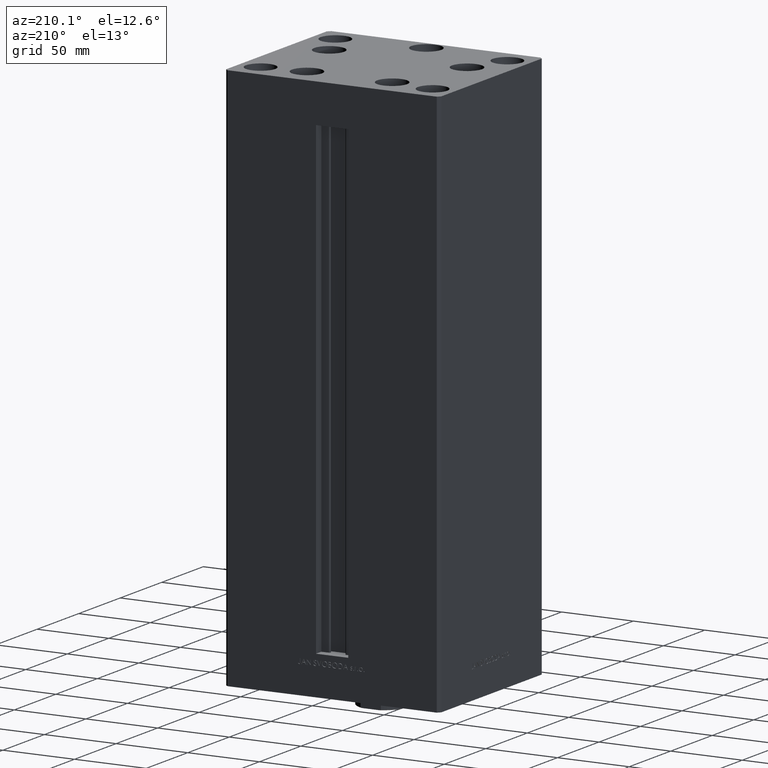
[diagram: clean part render]
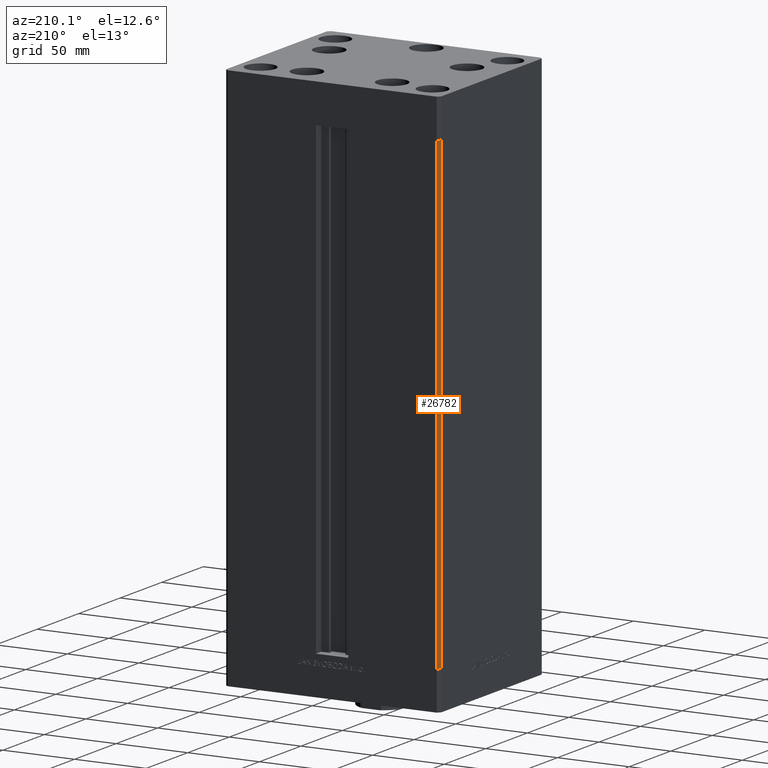
[diagram: same view with one face highlighted and labeled with its STEP entity id]
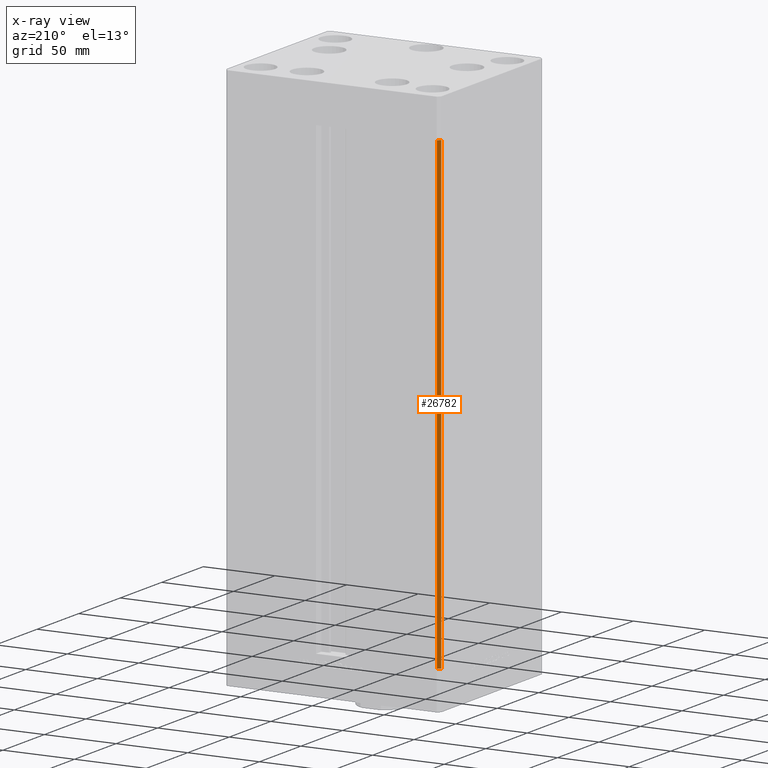
[diagram: x-ray of the same camera — body ghosted, the highlighted face saturated]
A machine part, auxiliary view. The second image highlights one B-rep face of the part: STEP entity #26782.
The next image is the same camera in x-ray: the body ghosted, the highlighted face saturated — about 0% of this face is hidden behind the body in this view.
In plain terms, the highlighted planar face has unit normal (0.7071, -0.7071, 0).
Its self-contained STEP definition (entity closure, byte-faithful):
#113 = CARTESIAN_POINT ( 'NONE',  ( -73.00000000000001421, 62.50000000000000000, 327.0000000000000000 ) ) ;
#4219 = VECTOR ( 'NONE', #44617, 1000.000000000000114 ) ;
#7612 = LINE ( 'NONE', #48686, #27480 ) ;
#9107 = VERTEX_POINT ( 'NONE', #34677 ) ;
#9679 = CARTESIAN_POINT ( 'NONE',  ( -75.00000000000001421, 60.50000000000000000, 0.000000000000000000 ) ) ;
#13192 = ORIENTED_EDGE ( 'NONE', *, *, #15219, .F. ) ;
#14679 = LINE ( 'NONE', #45355, #4219 ) ;
#15219 = EDGE_CURVE ( 'NONE', #29748, #39631, #44306, .T. ) ;
#15992 = ORIENTED_EDGE ( 'NONE', *, *, #35708, .T. ) ;
#16703 = EDGE_CURVE ( 'NONE', #9107, #46845, #47319, .T. ) ;
#17622 = ORIENTED_EDGE ( 'NONE', *, *, #22177, .F. ) ;
#19909 = CARTESIAN_POINT ( 'NONE',  ( -75.00000000000001421, 60.50000000000000000, 327.0000000000000000 ) ) ;
#22070 = CARTESIAN_POINT ( 'NONE',  ( -73.00000000000001421, 62.50000000000000000, 327.0000000000000000 ) ) ;
#22177 = EDGE_CURVE ( 'NONE', #9107, #29748, #14679, .T. ) ;
#22626 = PLANE ( 'NONE',  #27965 ) ;
#25369 = CARTESIAN_POINT ( 'NONE',  ( -73.00000000000001421, 62.50000000000000000, 0.000000000000000000 ) ) ;
#26782 = ADVANCED_FACE ( 'NONE', ( #40716 ), #22626, .F. ) ;
#27480 = VECTOR ( 'NONE', #33365, 1000.000000000000114 ) ;
#27965 = AXIS2_PLACEMENT_3D ( 'NONE', #113, #33301, #44427 ) ;
#29748 = VERTEX_POINT ( 'NONE', #19909 ) ;
#31693 = VECTOR ( 'NONE', #48502, 1000.000000000000000 ) ;
#33301 = DIRECTION ( 'NONE',  ( 0.7071067811865475727, -0.7071067811865475727, 0.000000000000000000 ) ) ;
#33365 = DIRECTION ( 'NONE',  ( -0.7071067811865474617, -0.7071067811865474617, 0.000000000000000000 ) ) ;
#33828 = EDGE_LOOP ( 'NONE', ( #15992, #13192, #17622, #44246 ) ) ;
#34677 = CARTESIAN_POINT ( 'NONE',  ( -73.00000000000001421, 62.50000000000000000, 327.0000000000000000 ) ) ;
#35708 = EDGE_CURVE ( 'NONE', #46845, #39631, #7612, .T. ) ;
#39631 = VERTEX_POINT ( 'NONE', #9679 ) ;
#40716 = FACE_OUTER_BOUND ( 'NONE', #33828, .T. ) ;
#43810 = CARTESIAN_POINT ( 'NONE',  ( -75.00000000000001421, 60.50000000000000000, 327.0000000000000000 ) ) ;
#44246 = ORIENTED_EDGE ( 'NONE', *, *, #16703, .T. ) ;
#44306 = LINE ( 'NONE', #43810, #31693 ) ;
#44427 = DIRECTION ( 'NONE',  ( 0.7071067811865474617, 0.7071067811865474617, 0.000000000000000000 ) ) ;
#44595 = DIRECTION ( 'NONE',  ( -0.000000000000000000, -0.000000000000000000, -1.000000000000000000 ) ) ;
#44617 = DIRECTION ( 'NONE',  ( -0.7071067811865474617, -0.7071067811865474617, 0.000000000000000000 ) ) ;
#45355 = CARTESIAN_POINT ( 'NONE',  ( -73.00000000000001421, 62.50000000000000000, 327.0000000000000000 ) ) ;
#46845 = VERTEX_POINT ( 'NONE', #25369 ) ;
#47319 = LINE ( 'NONE', #22070, #47540 ) ;
#47540 = VECTOR ( 'NONE', #44595, 1000.000000000000000 ) ;
#48502 = DIRECTION ( 'NONE',  ( -0.000000000000000000, -0.000000000000000000, -1.000000000000000000 ) ) ;
#48686 = CARTESIAN_POINT ( 'NONE',  ( -73.00000000000001421, 62.50000000000000000, 0.000000000000000000 ) ) ;